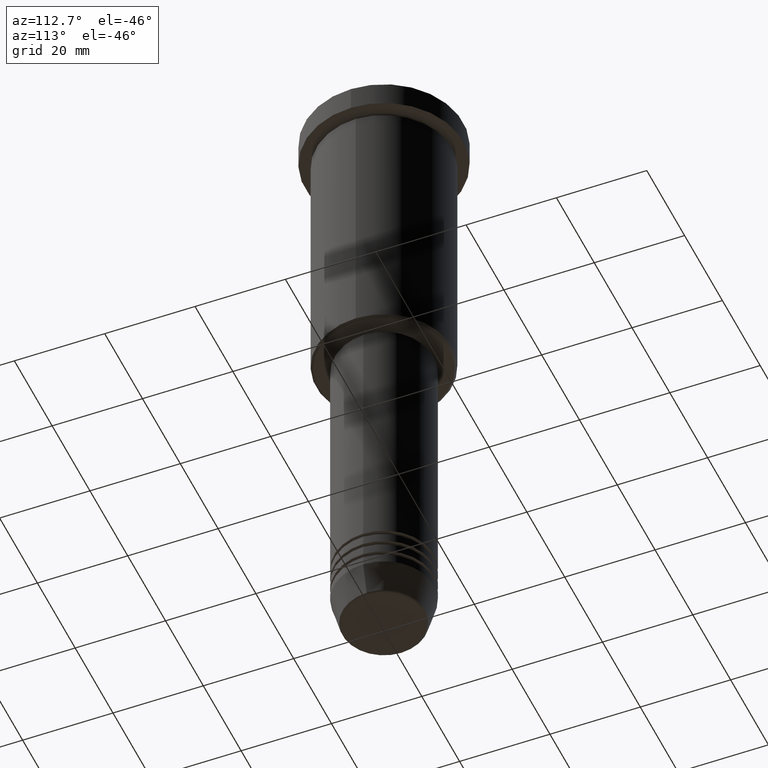
[diagram: clean part render]
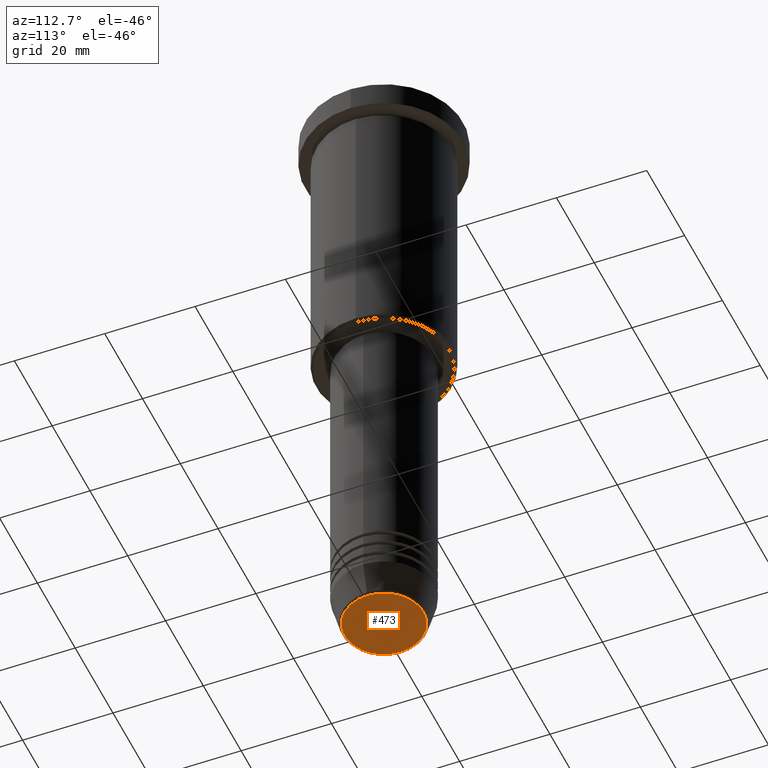
[diagram: same view with one face highlighted and labeled with its STEP entity id]
A machine part, auxiliary view. The second image highlights one B-rep face of the part: STEP entity #473.
In plain terms, the highlighted planar face has unit normal (0, -0, 1).
Its self-contained STEP definition (entity closure, byte-faithful):
#68 = CIRCLE ( 'NONE', #258, 8.740692158992656502 ) ;
#103 = CARTESIAN_POINT ( 'NONE',  ( 0.000000000000000000, 0.000000000000000000, -141.0000000000000000 ) ) ;
#125 = AXIS2_PLACEMENT_3D ( 'NONE', #103, #199, #480 ) ;
#172 = PLANE ( 'NONE',  #355 ) ;
#199 = DIRECTION ( 'NONE',  ( 0.000000000000000000, 0.000000000000000000, -1.000000000000000000 ) ) ;
#208 = DIRECTION ( 'NONE',  ( 1.000000000000000000, 0.000000000000000000, 0.000000000000000000 ) ) ;
#258 = AXIS2_PLACEMENT_3D ( 'NONE', #1054, #1037, #606 ) ;
#288 = FACE_OUTER_BOUND ( 'NONE', #1027, .T. ) ;
#312 = EDGE_CURVE ( 'NONE', #322, #758, #1000, .T. ) ;
#322 = VERTEX_POINT ( 'NONE', #375 ) ;
#355 = AXIS2_PLACEMENT_3D ( 'NONE', #532, #718, #208 ) ;
#375 = CARTESIAN_POINT ( 'NONE',  ( 8.740692158992656502, 0.000000000000000000, -141.0000000000000000 ) ) ;
#473 = ADVANCED_FACE ( 'NONE', ( #288 ), #172, .F. ) ;
#480 = DIRECTION ( 'NONE',  ( 1.000000000000000000, 0.000000000000000000, 0.000000000000000000 ) ) ;
#532 = CARTESIAN_POINT ( 'NONE',  ( 0.000000000000000000, 0.000000000000000000, -141.0000000000000000 ) ) ;
#606 = DIRECTION ( 'NONE',  ( 1.000000000000000000, 0.000000000000000000, 0.000000000000000000 ) ) ;
#645 = ORIENTED_EDGE ( 'NONE', *, *, #312, .T. ) ;
#718 = DIRECTION ( 'NONE',  ( 0.000000000000000000, -0.000000000000000000, 1.000000000000000000 ) ) ;
#758 = VERTEX_POINT ( 'NONE', #809 ) ;
#809 = CARTESIAN_POINT ( 'NONE',  ( -8.740692158992656502, 1.099999016768739653E-15, -141.0000000000000000 ) ) ;
#1000 = CIRCLE ( 'NONE', #125, 8.740692158992656502 ) ;
#1027 = EDGE_LOOP ( 'NONE', ( #645, #1168 ) ) ;
#1037 = DIRECTION ( 'NONE',  ( 0.000000000000000000, 0.000000000000000000, -1.000000000000000000 ) ) ;
#1054 = CARTESIAN_POINT ( 'NONE',  ( 0.000000000000000000, 0.000000000000000000, -141.0000000000000000 ) ) ;
#1106 = EDGE_CURVE ( 'NONE', #758, #322, #68, .T. ) ;
#1168 = ORIENTED_EDGE ( 'NONE', *, *, #1106, .T. ) ;